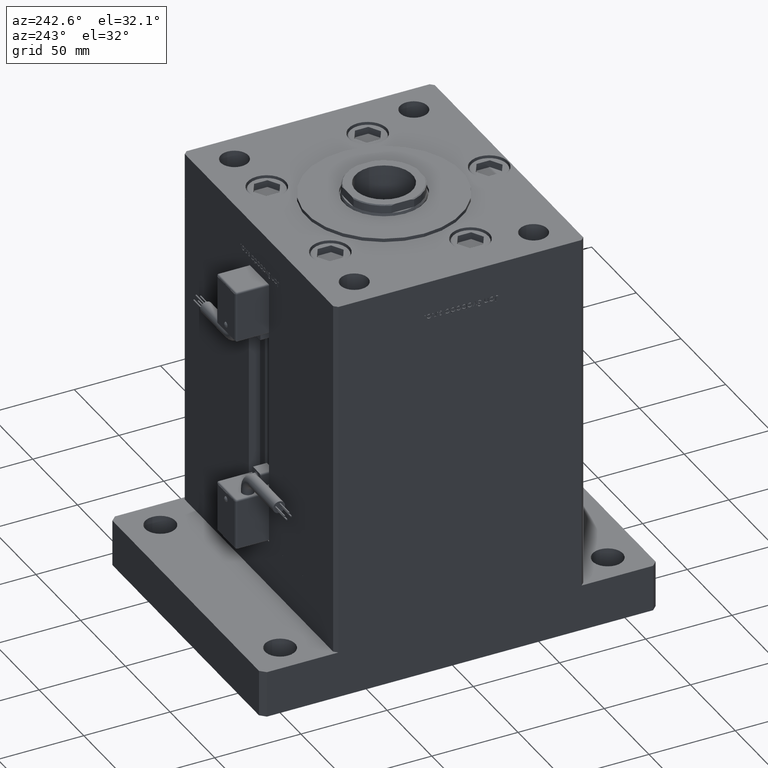
[diagram: clean part render]
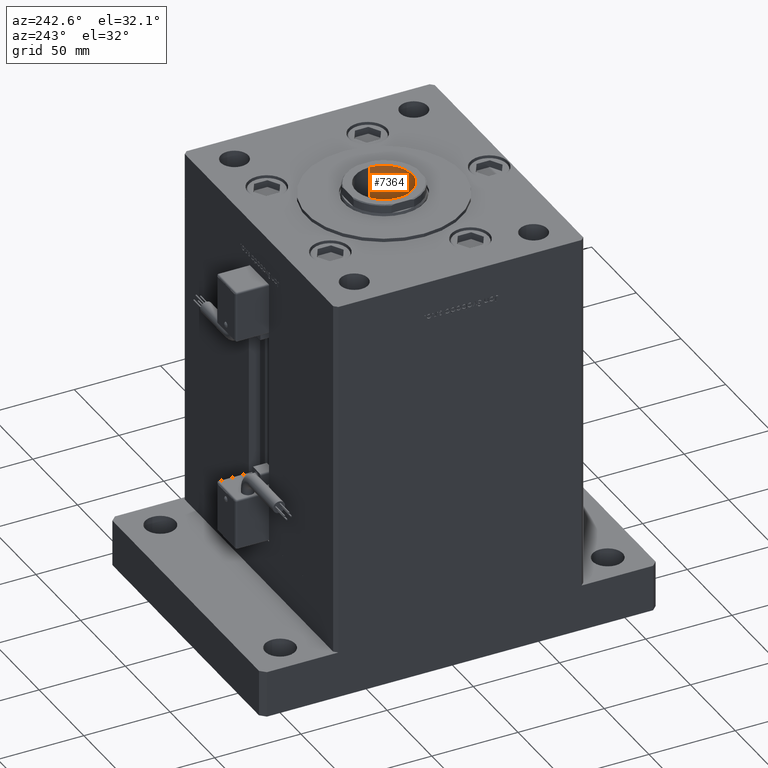
[diagram: same view with one face highlighted and labeled with its STEP entity id]
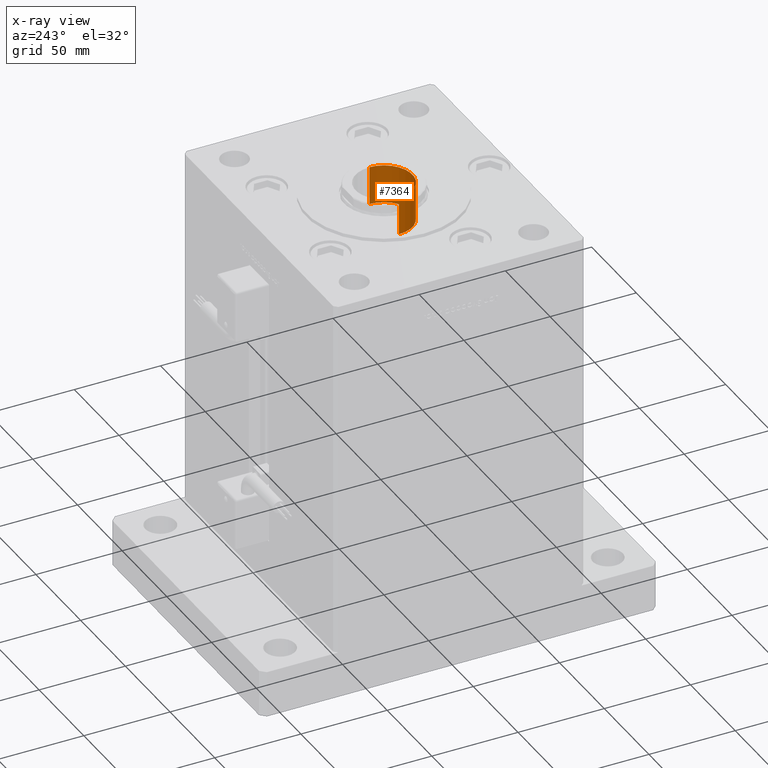
[diagram: x-ray of the same camera — body ghosted, the highlighted face saturated]
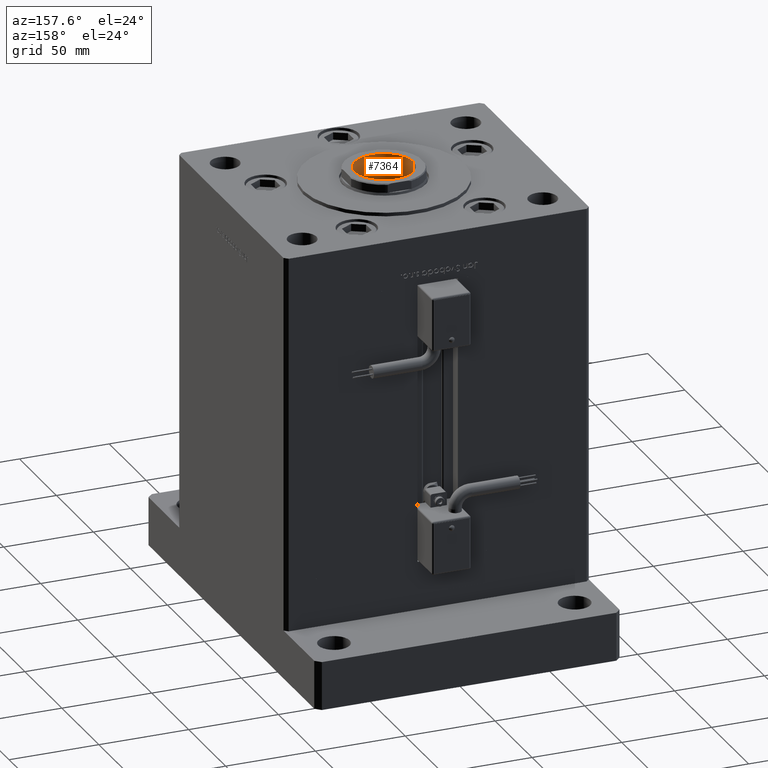
[diagram: same view with one face highlighted and labeled with its STEP entity id]
A machine part, auxiliary view. The second image highlights one B-rep face of the part: STEP entity #7364.
The next image is the same camera in x-ray: the body ghosted, the highlighted face saturated — about 0% of this face is hidden behind the body in this view.
A second angle (auxiliary view) of the same face is appended — the face is thin or edge-on in the first view.
In plain terms, the highlighted cylindrical surface (edge-blend (fillet) strip) has radius 16.5 mm, axis along (0, 0, 1).
Its self-contained STEP definition (entity closure, byte-faithful):
#780 = AXIS2_PLACEMENT_3D ( 'NONE', #34287, #16603, #7767 ) ;
#2335 = CARTESIAN_POINT ( 'NONE',  ( 0.000000000000000000, 0.000000000000000000, -16.49999999999999289 ) ) ;
#3943 = ORIENTED_EDGE ( 'NONE', *, *, #36380, .T. ) ;
#4448 = EDGE_CURVE ( 'NONE', #10819, #22769, #41789, .T. ) ;
#5012 = FACE_OUTER_BOUND ( 'NONE', #30259, .T. ) ;
#7364 = ADVANCED_FACE ( 'NONE', ( #5012 ), #22396, .F. ) ;
#7767 = DIRECTION ( 'NONE',  ( 0.000000000000000000, 0.000000000000000000, -1.000000000000000000 ) ) ;
#8746 = CIRCLE ( 'NONE', #42425, 16.49999999999999645 ) ;
#9559 = VECTOR ( 'NONE', #15515, 1000.000000000000000 ) ;
#10819 = VERTEX_POINT ( 'NONE', #11941 ) ;
#11166 = LINE ( 'NONE', #2335, #26089 ) ;
#11399 = DIRECTION ( 'NONE',  ( 0.000000000000000000, 0.000000000000000000, -1.000000000000000000 ) ) ;
#11941 = CARTESIAN_POINT ( 'NONE',  ( -22.39000000000000057, 2.020667218593132311E-15, 16.49999999999999289 ) ) ;
#15515 = DIRECTION ( 'NONE',  ( 1.000000000000000000, -0.000000000000000000, -0.000000000000000000 ) ) ;
#16603 = DIRECTION ( 'NONE',  ( 1.000000000000000000, -0.000000000000000000, -0.000000000000000000 ) ) ;
#17202 = ORIENTED_EDGE ( 'NONE', *, *, #4448, .F. ) ;
#19786 = LINE ( 'NONE', #33760, #9559 ) ;
#19955 = DIRECTION ( 'NONE',  ( 1.000000000000000000, -0.000000000000000000, -0.000000000000000000 ) ) ;
#21082 = CARTESIAN_POINT ( 'NONE',  ( -1.408343819019455979E-15, 0.000000000000000000, -16.49999999999999645 ) ) ;
#22396 = CYLINDRICAL_SURFACE ( 'NONE', #25486, 16.49999999999999289 ) ;
#22769 = VERTEX_POINT ( 'NONE', #28132 ) ;
#24305 = DIRECTION ( 'NONE',  ( 1.000000000000000000, -0.000000000000000000, -0.000000000000000000 ) ) ;
#25486 = AXIS2_PLACEMENT_3D ( 'NONE', #31246, #26414, #44659 ) ;
#26089 = VECTOR ( 'NONE', #24305, 1000.000000000000000 ) ;
#26414 = DIRECTION ( 'NONE',  ( 1.000000000000000000, -0.000000000000000000, -0.000000000000000000 ) ) ;
#28132 = CARTESIAN_POINT ( 'NONE',  ( -22.39000000000000057, 0.000000000000000000, -16.49999999999999289 ) ) ;
#28845 = VERTEX_POINT ( 'NONE', #45084 ) ;
#29039 = VERTEX_POINT ( 'NONE', #21082 ) ;
#30259 = EDGE_LOOP ( 'NONE', ( #17202, #54686, #3943, #47533 ) ) ;
#31246 = CARTESIAN_POINT ( 'NONE',  ( 0.000000000000000000, 0.000000000000000000, 0.000000000000000000 ) ) ;
#33760 = CARTESIAN_POINT ( 'NONE',  ( 0.000000000000000000, 2.020667218593132311E-15, 16.49999999999999289 ) ) ;
#34287 = CARTESIAN_POINT ( 'NONE',  ( -22.39000000000000057, 0.000000000000000000, 0.000000000000000000 ) ) ;
#34961 = EDGE_CURVE ( 'NONE', #22769, #29039, #11166, .T. ) ;
#36380 = EDGE_CURVE ( 'NONE', #28845, #29039, #8746, .T. ) ;
#41789 = CIRCLE ( 'NONE', #780, 16.49999999999999289 ) ;
#42425 = AXIS2_PLACEMENT_3D ( 'NONE', #55030, #19955, #11399 ) ;
#44659 = DIRECTION ( 'NONE',  ( 0.000000000000000000, 0.000000000000000000, -1.000000000000000000 ) ) ;
#45084 = CARTESIAN_POINT ( 'NONE',  ( -1.408343819019455979E-15, 2.020667218593132706E-15, 16.49999999999999645 ) ) ;
#47533 = ORIENTED_EDGE ( 'NONE', *, *, #34961, .F. ) ;
#49276 = EDGE_CURVE ( 'NONE', #10819, #28845, #19786, .T. ) ;
#54686 = ORIENTED_EDGE ( 'NONE', *, *, #49276, .T. ) ;
#55030 = CARTESIAN_POINT ( 'NONE',  ( -1.408343819019455979E-15, 0.000000000000000000, 0.000000000000000000 ) ) ;